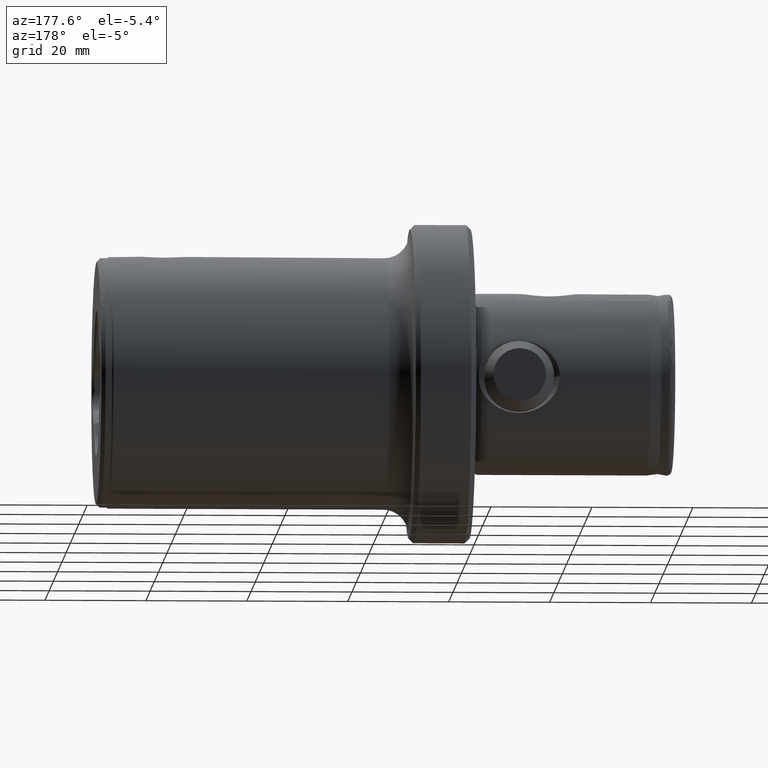
[diagram: clean part render]
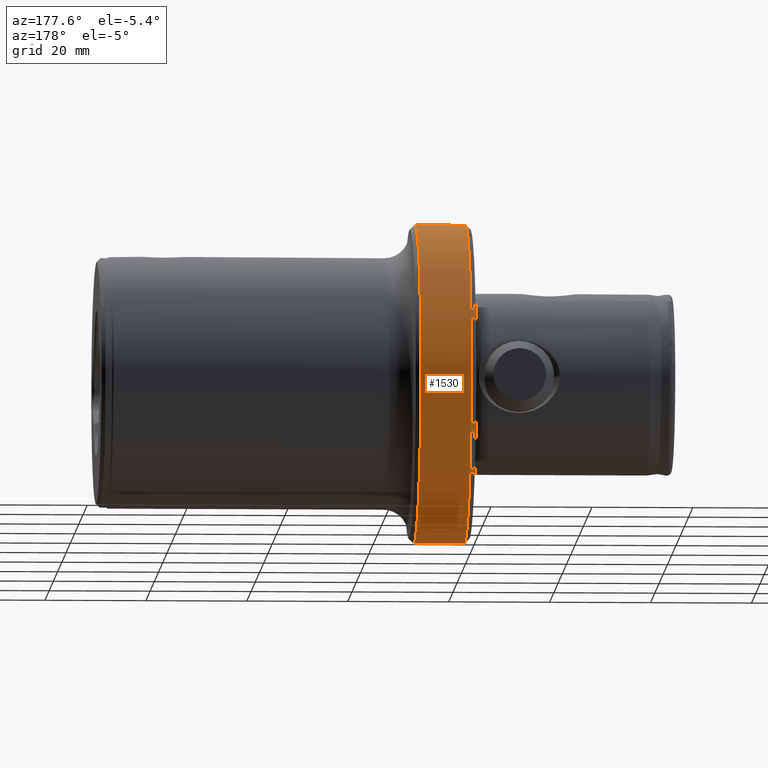
[diagram: same view with one face highlighted and labeled with its STEP entity id]
A machine part, auxiliary view. The second image highlights one B-rep face of the part: STEP entity #1530.
In plain terms, the highlighted cylindrical surface (partial cylindrical patch) has radius 31.635 mm, axis along (-1, -0, -0).
Its self-contained STEP definition (entity closure, byte-faithful):
#165 = EDGE_CURVE ( 'NONE', #1732, #1837, #402, .T. ) ;
#167 = EDGE_CURVE ( 'NONE', #1845, #1837, #2168, .T. ) ;
#168 = EDGE_CURVE ( 'NONE', #1745, #1732, #2169, .T. ) ;
#402 = CIRCLE ( 'NONE', #436, 31.63500000000000500 ) ;
#436 = AXIS2_PLACEMENT_3D ( 'NONE', #2848, #2849, #2850 ) ;
#439 = VECTOR ( 'NONE', #2854, 1000.000000000000000 ) ;
#440 = VECTOR ( 'NONE', #2856, 1000.000000000000000 ) ;
#650 = ORIENTED_EDGE ( 'NONE', *, *, #1312, .T. ) ;
#651 = ORIENTED_EDGE ( 'NONE', *, *, #165, .F. ) ;
#652 = ORIENTED_EDGE ( 'NONE', *, *, #167, .T. ) ;
#653 = ORIENTED_EDGE ( 'NONE', *, *, #168, .F. ) ;
#1312 = EDGE_CURVE ( 'NONE', #1745, #1845, #3176, .T. ) ;
#1530 = ADVANCED_FACE ( 'NONE', ( #2404 ), #2405, .T. ) ;
#1732 = VERTEX_POINT ( 'NONE', #4961 ) ;
#1745 = VERTEX_POINT ( 'NONE', #4974 ) ;
#1837 = VERTEX_POINT ( 'NONE', #5066 ) ;
#1845 = VERTEX_POINT ( 'NONE', #5074 ) ;
#1895 = EDGE_LOOP ( 'NONE', ( #650, #652, #651, #653 ) ) ;
#2168 = LINE ( 'NONE', #2853, #439 ) ;
#2169 = LINE ( 'NONE', #2855, #440 ) ;
#2404 = FACE_OUTER_BOUND ( 'NONE', #1895, .T. ) ;
#2405 = CYLINDRICAL_SURFACE ( 'NONE', #4608, 31.63500000000000500 ) ;
#2848 = CARTESIAN_POINT ( 'NONE',  ( 41.00000000000000000, 0.0000000000000000000, 0.0000000000000000000 ) ) ;
#2849 = DIRECTION ( 'NONE',  ( -1.000000000000000000, -0.0000000000000000000, -0.0000000000000000000 ) ) ;
#2850 = DIRECTION ( 'NONE',  ( 0.0000000000000000000, 0.0000000000000000000, 1.000000000000000000 ) ) ;
#2853 = CARTESIAN_POINT ( 'NONE',  ( 0.0000000000000000000, 3.874170149102652900E-015, -31.63500000000000500 ) ) ;
#2854 = DIRECTION ( 'NONE',  ( -1.000000000000000000, -0.0000000000000000000, -0.0000000000000000000 ) ) ;
#2855 = CARTESIAN_POINT ( 'NONE',  ( 0.0000000000000000000, 0.0000000000000000000, 31.63500000000000500 ) ) ;
#2856 = DIRECTION ( 'NONE',  ( -1.000000000000000000, -0.0000000000000000000, -0.0000000000000000000 ) ) ;
#3176 = CIRCLE ( 'NONE', #3182, 31.63500000000000500 ) ;
#3182 = AXIS2_PLACEMENT_3D ( 'NONE', #3708, #3709, #3710 ) ;
#3708 = CARTESIAN_POINT ( 'NONE',  ( 51.00000000000000000, 0.0000000000000000000, 0.0000000000000000000 ) ) ;
#3709 = DIRECTION ( 'NONE',  ( -1.000000000000000000, -0.0000000000000000000, -0.0000000000000000000 ) ) ;
#3710 = DIRECTION ( 'NONE',  ( 0.0000000000000000000, 0.0000000000000000000, 1.000000000000000000 ) ) ;
#4608 = AXIS2_PLACEMENT_3D ( 'NONE', #4907, #4908, #4909 ) ;
#4907 = CARTESIAN_POINT ( 'NONE',  ( 0.0000000000000000000, 0.0000000000000000000, 0.0000000000000000000 ) ) ;
#4908 = DIRECTION ( 'NONE',  ( -1.000000000000000000, -0.0000000000000000000, -0.0000000000000000000 ) ) ;
#4909 = DIRECTION ( 'NONE',  ( 0.0000000000000000000, 0.0000000000000000000, 1.000000000000000000 ) ) ;
#4961 = CARTESIAN_POINT ( 'NONE',  ( 41.00000000000000000, 0.0000000000000000000, 31.63500000000000500 ) ) ;
#4974 = CARTESIAN_POINT ( 'NONE',  ( 51.00000000000000000, 0.0000000000000000000, 31.63500000000000500 ) ) ;
#5066 = CARTESIAN_POINT ( 'NONE',  ( 41.00000000000000000, 3.874170149102652900E-015, -31.63500000000000500 ) ) ;
#5074 = CARTESIAN_POINT ( 'NONE',  ( 51.00000000000000000, 3.874170149102652900E-015, -31.63500000000000500 ) ) ;